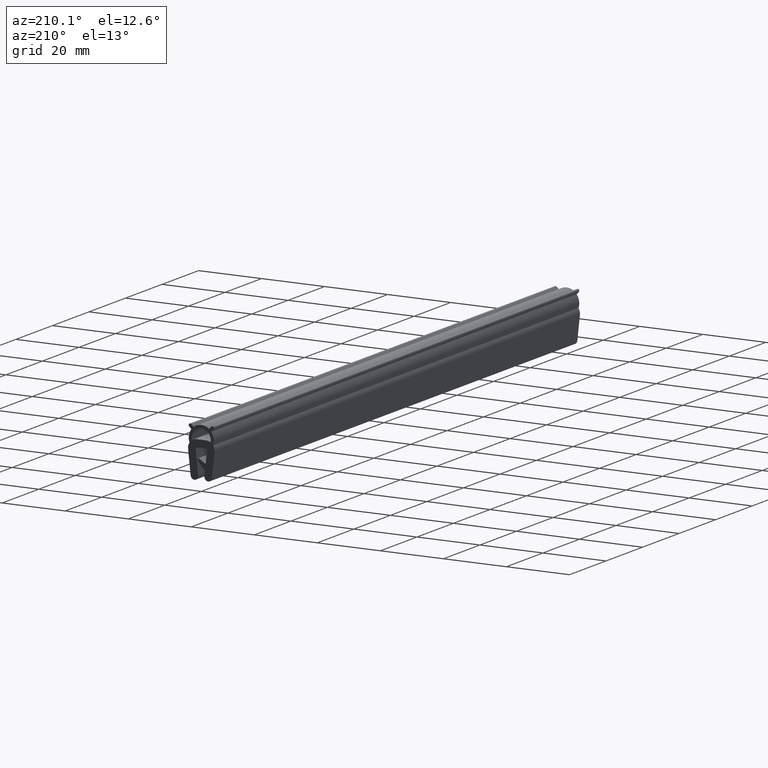
[diagram: clean part render]
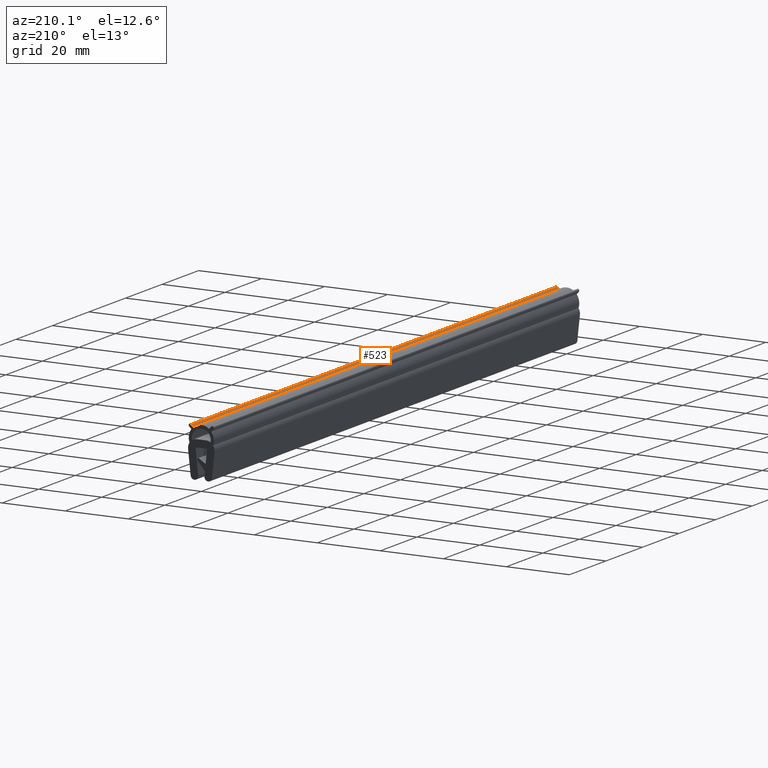
[diagram: same view with one face highlighted and labeled with its STEP entity id]
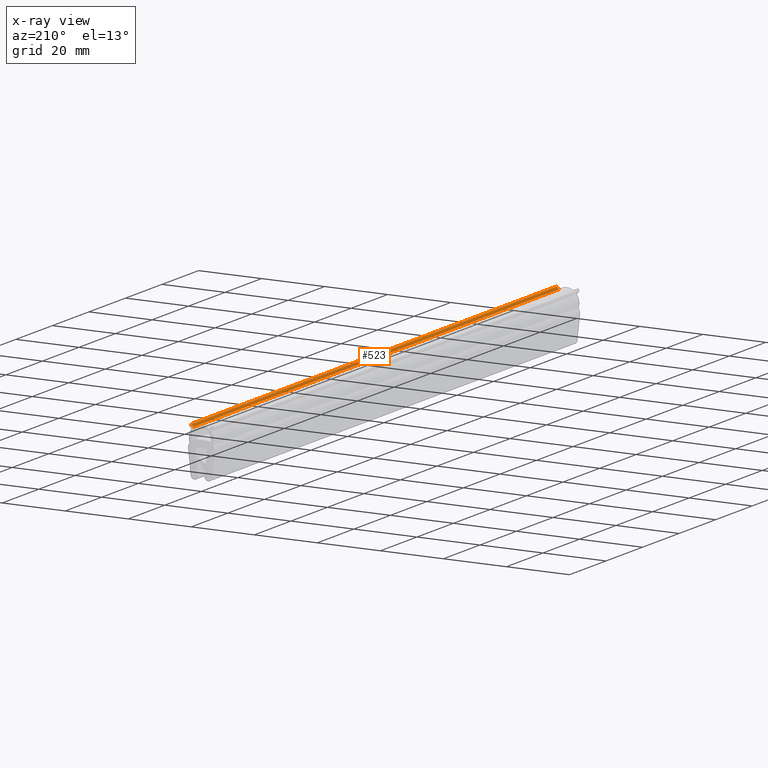
[diagram: x-ray of the same camera — body ghosted, the highlighted face saturated]
A machine part, auxiliary view. The second image highlights one B-rep face of the part: STEP entity #523.
The next image is the same camera in x-ray: the body ghosted, the highlighted face saturated — about 0% of this face is hidden behind the body in this view.
In plain terms, the highlighted face is a freeform B-spline surface patch.
Its self-contained STEP definition (entity closure, byte-faithful):
#122=CARTESIAN_POINT('',(3.146446609406710,0.0,-0.146446609406766));
#123=VERTEX_POINT('',#122);
#141=CARTESIAN_POINT('',(2.452689649487175,0.0,-0.840203569326272));
#142=VERTEX_POINT('',#141);
#143=CARTESIAN_POINT('',(2.452689649487175,0.0,-0.840203569326272));
#144=CARTESIAN_POINT('',(3.146446609406710,0.0,-0.146446609406766));
#145=QUASI_UNIFORM_CURVE('',1,(#143,#144),.UNSPECIFIED.,.F.,.U.);
#146=EDGE_CURVE('',#142,#123,#145,.T.);
#282=CARTESIAN_POINT('',(2.452689649487175,200.0,-0.840203569326272));
#283=VERTEX_POINT('',#282);
#297=CARTESIAN_POINT('',(3.146446609406710,200.0,-0.146446609406766));
#298=VERTEX_POINT('',#297);
#299=CARTESIAN_POINT('',(2.452689649487175,200.0,-0.840203569326272));
#300=CARTESIAN_POINT('',(3.146446609406710,200.0,-0.146446609406766));
#301=QUASI_UNIFORM_CURVE('',1,(#299,#300),.UNSPECIFIED.,.F.,.U.);
#302=EDGE_CURVE('',#283,#298,#301,.T.);
#500=CARTESIAN_POINT('',(3.146446609406710,200.0,-0.146446609406766));
#501=CARTESIAN_POINT('',(3.146446609406710,0.0,-0.146446609406766));
#502=QUASI_UNIFORM_CURVE('',1,(#500,#501),.UNSPECIFIED.,.F.,.U.);
#503=EDGE_CURVE('',#298,#123,#502,.T.);
#508=CARTESIAN_POINT('',(3.181099820310009,-9.989999612361194,-0.111793398503472));
#509=CARTESIAN_POINT('',(2.418036469597219,-9.989999612361194,-0.874856749216202));
#510=CARTESIAN_POINT('',(3.181099820310009,209.990004976779200,-0.111793398503472));
#511=CARTESIAN_POINT('',(2.418036469597219,209.990004976779200,-0.874856749216202));
#512=B_SPLINE_SURFACE_WITH_KNOTS('',1,1,((#508,#510),(#509,#511)),.UNSPECIFIED.,.F.,.F.,.U.,(2,2),(2,2),(0.041708272366598,0.958291690380499),(0.0,219.980004589140410),.UNSPECIFIED.);
#513=ORIENTED_EDGE('',*,*,#146,.T.);
#514=ORIENTED_EDGE('',*,*,#503,.F.);
#515=ORIENTED_EDGE('',*,*,#302,.F.);
#516=CARTESIAN_POINT('',(2.452689649487175,200.0,-0.840203569326272));
#517=CARTESIAN_POINT('',(2.452689649487175,0.0,-0.840203569326272));
#518=QUASI_UNIFORM_CURVE('',1,(#516,#517),.UNSPECIFIED.,.F.,.U.);
#519=EDGE_CURVE('',#283,#142,#518,.T.);
#520=ORIENTED_EDGE('',*,*,#519,.T.);
#521=EDGE_LOOP('',(#513,#514,#515,#520));
#522=FACE_OUTER_BOUND('',#521,.T.);
#523=ADVANCED_FACE('',(#522),#512,.F.);